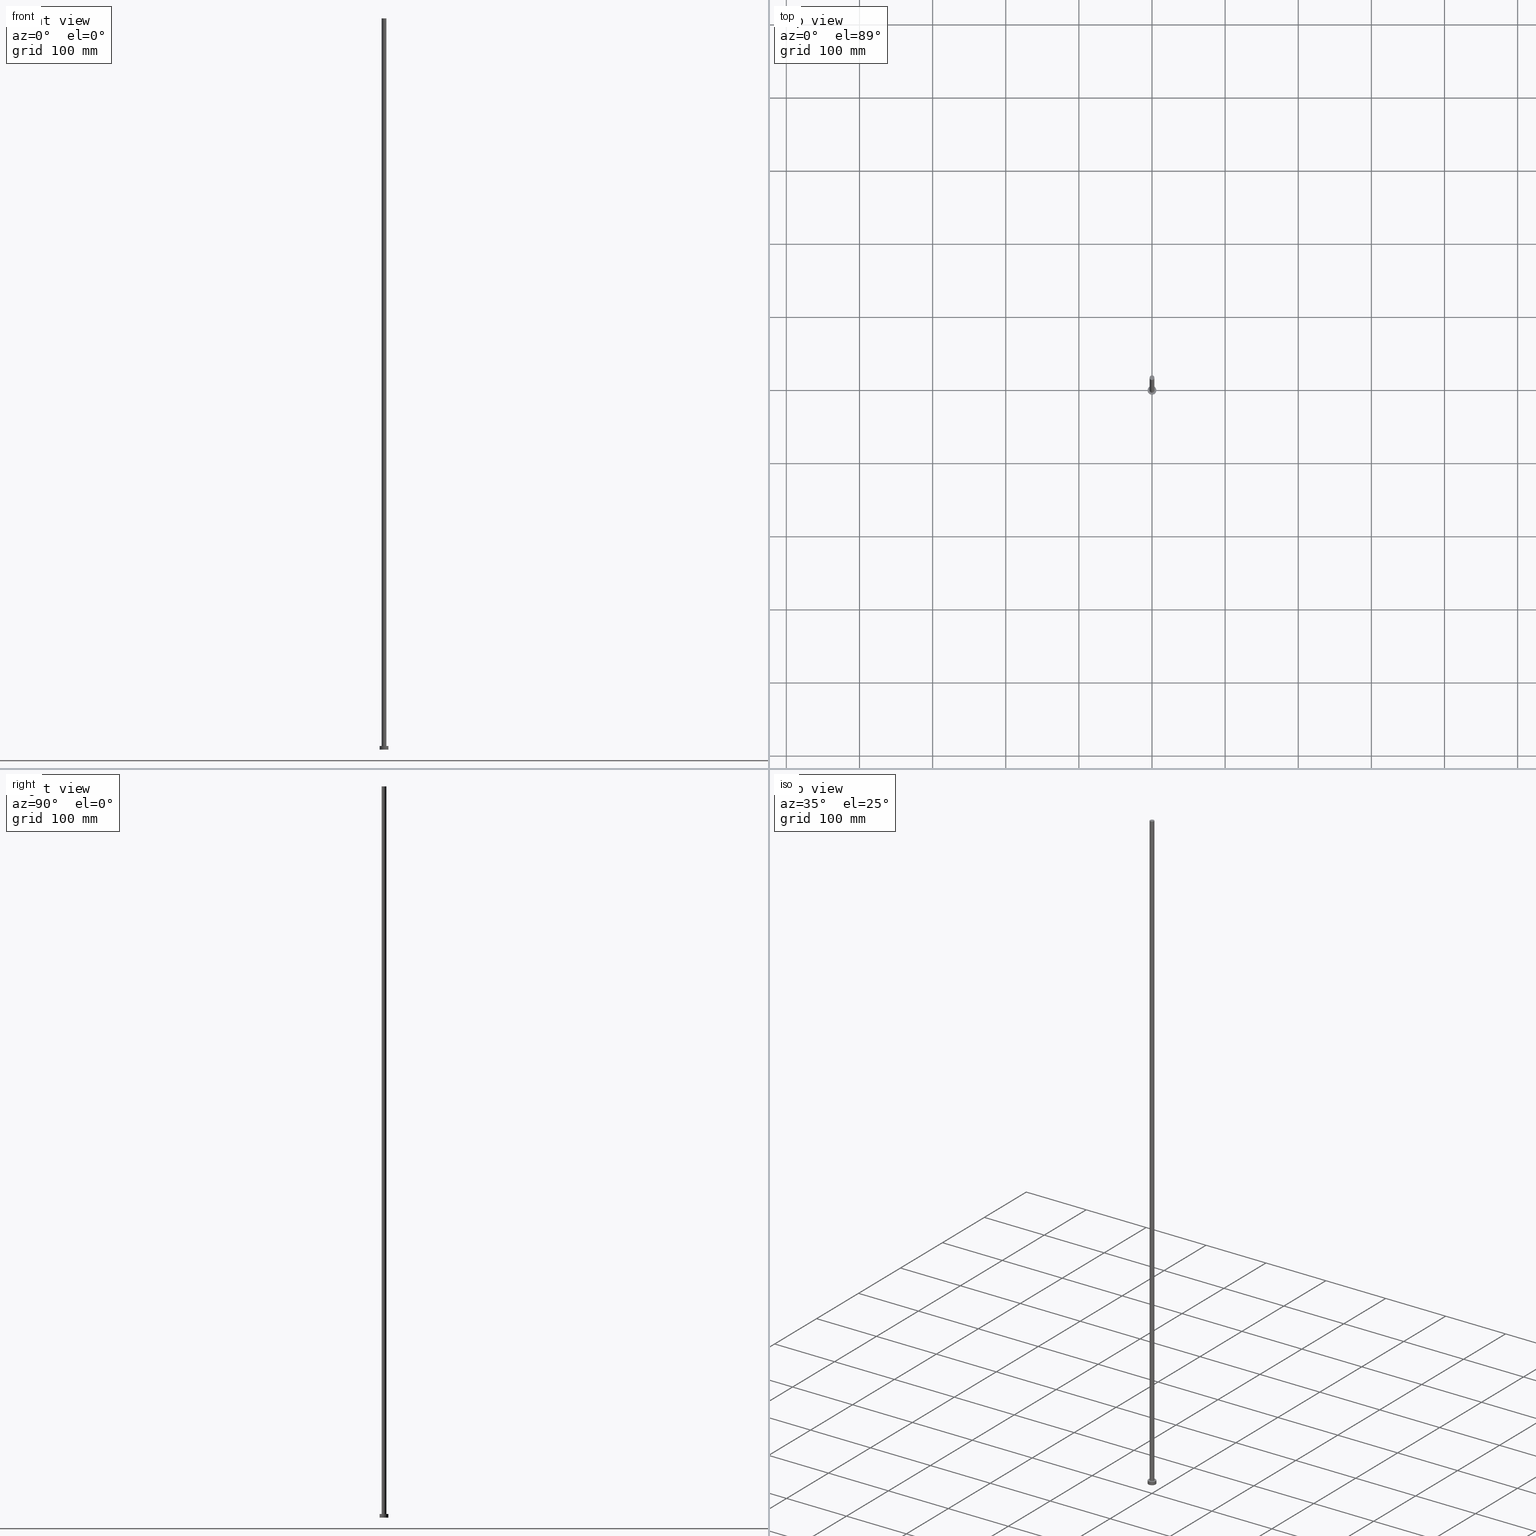
[diagram: canonical four-view strip — front | top / right | iso, engineering-drawing reading convention]
A machine part, canonical four-view strip (front | top / right | iso — engineering-drawing reading convention). The complete STEP part file that produces these views, byte-faithful:
ISO-10303-21;
HEADER;
FILE_DESCRIPTION (( 'STEP AP203' ),
    '1' );
FILE_NAME ('9ff3.STEP',
    '2023-02-13T15:15:50',
    ( '' ),
    ( '' ),
    'SwSTEP 2.0',
    'SolidWorks 2019',
    '' );
FILE_SCHEMA (( 'CONFIG_CONTROL_DESIGN' ));
ENDSEC;

DATA;
#1 =( LENGTH_UNIT ( ) NAMED_UNIT ( * ) SI_UNIT ( .MILLI., .METRE. ) );
#2 = VERTEX_POINT ( 'NONE', #10 ) ;
#3 = COORDINATED_UNIVERSAL_TIME_OFFSET ( 1, 0, .AHEAD. ) ;
#4 = VERTEX_POINT ( 'NONE', #89 ) ;
#5 = EDGE_CURVE ( 'NONE', #28, #4, #201, .T. ) ;
#6 = CIRCLE ( 'NONE', #15, 6.000000000000000888 ) ;
#7 = EDGE_LOOP ( 'NONE', ( #250, #63 ) ) ;
#8 = CARTESIAN_POINT ( 'NONE',  ( -6.000000000000000888, 0.000000000000000000, 5.000000000000000000 ) ) ;
#9 = DATE_AND_TIME ( #85, #100 ) ;
#10 = CARTESIAN_POINT ( 'NONE',  ( -6.000000000000000888, 0.000000000000000000, 5.000000000000000000 ) ) ;
#11 = PRODUCT_DEFINITION ( 'NEZN�M�', '', #158, #50 ) ;
#12 = AXIS2_PLACEMENT_3D ( 'NONE', #80, #165, #186 ) ;
#13 = DIRECTION ( 'NONE',  ( 0.000000000000000000, 0.000000000000000000, 1.000000000000000000 ) ) ;
#14 = CYLINDRICAL_SURFACE ( 'NONE', #41, 3.250000000000000444 ) ;
#15 = AXIS2_PLACEMENT_3D ( 'NONE', #122, #120, #21 ) ;
#16 = CARTESIAN_POINT ( 'NONE',  ( -6.000000000000000888, 0.000000000000000000, 0.000000000000000000 ) ) ;
#17 = DIRECTION ( 'NONE',  ( -0.000000000000000000, -0.000000000000000000, -1.000000000000000000 ) ) ;
#18 = DIRECTION ( 'NONE',  ( -0.000000000000000000, -0.000000000000000000, -1.000000000000000000 ) ) ;
#19 = VERTEX_POINT ( 'NONE', #171 ) ;
#20 = PERSON_AND_ORGANIZATION ( #163, #48 ) ;
#21 = DIRECTION ( 'NONE',  ( 1.000000000000000000, 0.000000000000000000, 0.000000000000000000 ) ) ;
#22 = ORIENTED_EDGE ( 'NONE', *, *, #200, .F. ) ;
#23 = FACE_BOUND ( 'NONE', #247, .T. ) ;
#24 = MANIFOLD_SOLID_BREP ( 'P�idat vysunut�m3', #60 ) ;
#25 = CC_DESIGN_DATE_AND_TIME_ASSIGNMENT ( #82, #64, ( #11 ) ) ;
#26 = DIRECTION ( 'NONE',  ( 1.000000000000000000, 0.000000000000000000, 0.000000000000000000 ) ) ;
#27 = PERSON_AND_ORGANIZATION ( #163, #48 ) ;
#28 = VERTEX_POINT ( 'NONE', #71 ) ;
#29 = CARTESIAN_POINT ( 'NONE',  ( 0.000000000000000000, 0.000000000000000000, 5.000000000000000000 ) ) ;
#30 = APPROVAL ( #237, 'NEUR�EN�' ) ;
#31 = VECTOR ( 'NONE', #88, 1000.000000000000000 ) ;
#32 = CALENDAR_DATE ( 2023, 13, 2 ) ;
#33 = APPLICATION_PROTOCOL_DEFINITION ( 'international standard', 'config_control_design', 1994, #154 ) ;
#34 = APPROVAL_ROLE ( '' ) ;
#35 = EDGE_CURVE ( 'NONE', #2, #84, #152, .T. ) ;
#36 = DIRECTION ( 'NONE',  ( 0.000000000000000000, 0.000000000000000000, 1.000000000000000000 ) ) ;
#37 = CYLINDRICAL_SURFACE ( 'NONE', #174, 6.000000000000000888 ) ;
#38 = DIRECTION ( 'NONE',  ( -1.000000000000000000, 0.000000000000000000, 0.000000000000000000 ) ) ;
#39 = LOCAL_TIME ( 16, 15, 50.00000000000000000, #116 ) ;
#40 = CC_DESIGN_PERSON_AND_ORGANIZATION_ASSIGNMENT ( #226, #111, ( #158 ) ) ;
#41 = AXIS2_PLACEMENT_3D ( 'NONE', #135, #115, #95 ) ;
#42 = AXIS2_PLACEMENT_3D ( 'NONE', #29, #236, #114 ) ;
#43 = CARTESIAN_POINT ( 'NONE',  ( 6.000000000000000888, 7.347880794884120722E-16, 5.000000000000000000 ) ) ;
#44 = CC_DESIGN_APPROVAL ( #107, ( #75 ) ) ;
#45 = CC_DESIGN_PERSON_AND_ORGANIZATION_ASSIGNMENT ( #149, #189, ( #158 ) ) ;
#46 = DIRECTION ( 'NONE',  ( 1.000000000000000000, 0.000000000000000000, 0.000000000000000000 ) ) ;
#47 = ORIENTED_EDGE ( 'NONE', *, *, #234, .T. ) ;
#48 = ORGANIZATION ( 'NEUR�EN�', 'NEUR�EN�', '' ) ;
#49 = ORIENTED_EDGE ( 'NONE', *, *, #206, .T. ) ;
#50 = DESIGN_CONTEXT ( 'detailed design', #154, 'design' ) ;
#51 = CARTESIAN_POINT ( 'NONE',  ( -3.250000000000000444, 0.000000000000000000, 1000.000000000000000 ) ) ;
#52 = AXIS2_PLACEMENT_3D ( 'NONE', #102, #223, #227 ) ;
#53 =( NAMED_UNIT ( * ) PLANE_ANGLE_UNIT ( ) SI_UNIT ( $, .RADIAN. ) );
#54 = FACE_OUTER_BOUND ( 'NONE', #103, .T. ) ;
#55 =( NAMED_UNIT ( * ) SI_UNIT ( $, .STERADIAN. ) SOLID_ANGLE_UNIT ( ) );
#56 = EDGE_CURVE ( 'NONE', #19, #2, #94, .T. ) ;
#57 = DATE_AND_TIME ( #238, #90 ) ;
#58 = DIRECTION ( 'NONE',  ( 1.000000000000000000, 0.000000000000000000, -0.000000000000000000 ) ) ;
#59 = ORIENTED_EDGE ( 'NONE', *, *, #61, .F. ) ;
#60 = CLOSED_SHELL ( 'NONE', ( #124, #192, #153, #169, #73, #211, #140 ) ) ;
#61 = EDGE_CURVE ( 'NONE', #4, #28, #181, .T. ) ;
#62 = CARTESIAN_POINT ( 'NONE',  ( 0.000000000000000000, 0.000000000000000000, 5.000000000000000000 ) ) ;
#63 = ORIENTED_EDGE ( 'NONE', *, *, #56, .T. ) ;
#64 = DATE_TIME_ROLE ( 'creation_date' ) ;
#65 = CARTESIAN_POINT ( 'NONE',  ( 3.250000000000000444, 3.980102097228897245E-16, 5.000000000000000000 ) ) ;
#66 = APPROVAL ( #185, 'NEUR�EN�' ) ;
#67 = EDGE_LOOP ( 'NONE', ( #148, #59, #121, #47 ) ) ;
#68 = EDGE_LOOP ( 'NONE', ( #123, #172, #110, #166 ) ) ;
#69 = VECTOR ( 'NONE', #93, 1000.000000000000000 ) ;
#70 = CIRCLE ( 'NONE', #164, 3.250000000000000444 ) ;
#71 = CARTESIAN_POINT ( 'NONE',  ( 3.250000000000000444, 3.980102097228897245E-16, 1000.000000000000000 ) ) ;
#72 = PERSON_AND_ORGANIZATION ( #163, #48 ) ;
#73 = ADVANCED_FACE ( 'NONE', ( #130 ), #187, .F. ) ;
#74 = DIRECTION ( 'NONE',  ( -0.000000000000000000, -0.000000000000000000, -1.000000000000000000 ) ) ;
#75 = SECURITY_CLASSIFICATION ( '', '', #92 ) ;
#76 = PERSON_AND_ORGANIZATION_ROLE ( 'design_owner' ) ;
#77 = APPLICATION_CONTEXT ( 'configuration controlled 3d designs of mechanical parts and assemblies' ) ;
#78 = LINE ( 'NONE', #51, #69 ) ;
#79 = FACE_OUTER_BOUND ( 'NONE', #7, .T. ) ;
#80 = CARTESIAN_POINT ( 'NONE',  ( 0.000000000000000000, 0.000000000000000000, 0.000000000000000000 ) ) ;
#81 = APPROVAL_DATE_TIME ( #203, #66 ) ;
#82 = DATE_AND_TIME ( #205, #233 ) ;
#83 = DIRECTION ( 'NONE',  ( -1.000000000000000000, 0.000000000000000000, 0.000000000000000000 ) ) ;
#84 = VERTEX_POINT ( 'NONE', #16 ) ;
#85 = CALENDAR_DATE ( 2023, 13, 2 ) ;
#86 = APPROVAL_STATUS ( 'not_yet_approved' ) ;
#87 = AXIS2_PLACEMENT_3D ( 'NONE', #127, #209, #26 ) ;
#88 = DIRECTION ( 'NONE',  ( -0.000000000000000000, -0.000000000000000000, -1.000000000000000000 ) ) ;
#89 = CARTESIAN_POINT ( 'NONE',  ( -3.250000000000000444, 0.000000000000000000, 1000.000000000000000 ) ) ;
#90 = LOCAL_TIME ( 16, 15, 50.00000000000000000, #194 ) ;
#91 = EDGE_CURVE ( 'NONE', #4, #108, #78, .T. ) ;
#92 = SECURITY_CLASSIFICATION_LEVEL ( 'unclassified' ) ;
#93 = DIRECTION ( 'NONE',  ( -0.000000000000000000, -0.000000000000000000, -1.000000000000000000 ) ) ;
#94 = CIRCLE ( 'NONE', #241, 6.000000000000000888 ) ;
#95 = DIRECTION ( 'NONE',  ( -1.000000000000000000, 0.000000000000000000, 0.000000000000000000 ) ) ;
#96 = MECHANICAL_CONTEXT ( 'NONE', #77, 'mechanical' ) ;
#97 = DATE_AND_TIME ( #32, #39 ) ;
#98 = PERSON_AND_ORGANIZATION ( #163, #48 ) ;
#99 = LINE ( 'NONE', #43, #139 ) ;
#100 = LOCAL_TIME ( 16, 15, 50.00000000000000000, #128 ) ;
#101 = PERSON_AND_ORGANIZATION ( #163, #48 ) ;
#102 = CARTESIAN_POINT ( 'NONE',  ( 0.000000000000000000, 0.000000000000000000, 5.000000000000000000 ) ) ;
#103 = EDGE_LOOP ( 'NONE', ( #132, #112, #105, #202 ) ) ;
#104 = DIRECTION ( 'NONE',  ( -0.000000000000000000, -0.000000000000000000, -1.000000000000000000 ) ) ;
#105 = ORIENTED_EDGE ( 'NONE', *, *, #134, .T. ) ;
#106 = EDGE_CURVE ( 'NONE', #28, #150, #133, .T. ) ;
#107 = APPROVAL ( #86, 'NEUR�EN�' ) ;
#108 = VERTEX_POINT ( 'NONE', #157 ) ;
#109 = CC_DESIGN_PERSON_AND_ORGANIZATION_ASSIGNMENT ( #101, #243, ( #11 ) ) ;
#110 = ORIENTED_EDGE ( 'NONE', *, *, #35, .T. ) ;
#111 = PERSON_AND_ORGANIZATION_ROLE ( 'creator' ) ;
#112 = ORIENTED_EDGE ( 'NONE', *, *, #106, .T. ) ;
#113 = CC_DESIGN_PERSON_AND_ORGANIZATION_ASSIGNMENT ( #175, #76, ( #162 ) ) ;
#114 = DIRECTION ( 'NONE',  ( 1.000000000000000000, 0.000000000000000000, 0.000000000000000000 ) ) ;
#115 = DIRECTION ( 'NONE',  ( -0.000000000000000000, -0.000000000000000000, -1.000000000000000000 ) ) ;
#116 = COORDINATED_UNIVERSAL_TIME_OFFSET ( 1, 0, .AHEAD. ) ;
#117 = APPROVAL_ROLE ( '' ) ;
#118 = EDGE_CURVE ( 'NONE', #2, #19, #214, .T. ) ;
#119 = CARTESIAN_POINT ( 'NONE',  ( 6.000000000000000888, 7.347880794884120722E-16, 0.000000000000000000 ) ) ;
#120 = DIRECTION ( 'NONE',  ( 0.000000000000000000, 0.000000000000000000, 1.000000000000000000 ) ) ;
#121 = ORIENTED_EDGE ( 'NONE', *, *, #91, .T. ) ;
#122 = CARTESIAN_POINT ( 'NONE',  ( 0.000000000000000000, 0.000000000000000000, 0.000000000000000000 ) ) ;
#123 = ORIENTED_EDGE ( 'NONE', *, *, #206, .F. ) ;
#124 = ADVANCED_FACE ( 'NONE', ( #54 ), #14, .T. ) ;
#125 = FACE_OUTER_BOUND ( 'NONE', #67, .T. ) ;
#126 = CC_DESIGN_APPROVAL ( #66, ( #158 ) ) ;
#127 = CARTESIAN_POINT ( 'NONE',  ( 0.000000000000000000, 0.000000000000000000, 1000.000000000000000 ) ) ;
#128 = COORDINATED_UNIVERSAL_TIME_OFFSET ( 1, 0, .AHEAD. ) ;
#129 = CC_DESIGN_PERSON_AND_ORGANIZATION_ASSIGNMENT ( #72, #156, ( #75 ) ) ;
#130 = FACE_OUTER_BOUND ( 'NONE', #182, .T. ) ;
#131 = ORIENTED_EDGE ( 'NONE', *, *, #5, .T. ) ;
#132 = ORIENTED_EDGE ( 'NONE', *, *, #5, .F. ) ;
#133 = LINE ( 'NONE', #251, #160 ) ;
#134 = EDGE_CURVE ( 'NONE', #150, #108, #159, .T. ) ;
#135 = CARTESIAN_POINT ( 'NONE',  ( 0.000000000000000000, 0.000000000000000000, 1000.000000000000000 ) ) ;
#136 = SHAPE_DEFINITION_REPRESENTATION ( #142, #138 ) ;
#137 = DIRECTION ( 'NONE',  ( 1.000000000000000000, 0.000000000000000000, 0.000000000000000000 ) ) ;
#138 = ADVANCED_BREP_SHAPE_REPRESENTATION ( '9ff3', ( #24, #198 ), #207 ) ;
#139 = VECTOR ( 'NONE', #104, 1000.000000000000000 ) ;
#140 = ADVANCED_FACE ( 'NONE', ( #220 ), #224, .T. ) ;
#141 = CYLINDRICAL_SURFACE ( 'NONE', #188, 3.250000000000000444 ) ;
#142 = PRODUCT_DEFINITION_SHAPE ( 'NONE', 'NONE',  #11 ) ;
#143 = ORIENTED_EDGE ( 'NONE', *, *, #215, .F. ) ;
#144 = AXIS2_PLACEMENT_3D ( 'NONE', #183, #17, #83 ) ;
#145 = AXIS2_PLACEMENT_3D ( 'NONE', #217, #13, #216 ) ;
#146 = EDGE_LOOP ( 'NONE', ( #208, #131 ) ) ;
#147 = CARTESIAN_POINT ( 'NONE',  ( 0.000000000000000000, 0.000000000000000000, 5.000000000000000000 ) ) ;
#148 = ORIENTED_EDGE ( 'NONE', *, *, #106, .F. ) ;
#149 = PERSON_AND_ORGANIZATION ( #163, #48 ) ;
#150 = VERTEX_POINT ( 'NONE', #65 ) ;
#151 = APPROVAL_PERSON_ORGANIZATION ( #27, #107, #34 ) ;
#152 = LINE ( 'NONE', #8, #31 ) ;
#153 = ADVANCED_FACE ( 'NONE', ( #196 ), #37, .T. ) ;
#154 = APPLICATION_CONTEXT ( 'configuration controlled 3d designs of mechanical parts and assemblies' ) ;
#155 = DIRECTION ( 'NONE',  ( 0.000000000000000000, 0.000000000000000000, 1.000000000000000000 ) ) ;
#156 = PERSON_AND_ORGANIZATION_ROLE ( 'classification_officer' ) ;
#157 = CARTESIAN_POINT ( 'NONE',  ( -3.250000000000000444, 0.000000000000000000, 5.000000000000000000 ) ) ;
#158 = PRODUCT_DEFINITION_FORMATION_WITH_SPECIFIED_SOURCE ( 'LIBOVOLN�', '', #162, .NOT_KNOWN. ) ;
#159 = CIRCLE ( 'NONE', #52, 3.250000000000000444 ) ;
#160 = VECTOR ( 'NONE', #74, 1000.000000000000000 ) ;
#161 = APPROVAL_DATE_TIME ( #97, #107 ) ;
#162 = PRODUCT ( '9ff3', '9ff3', '', ( #96 ) ) ;
#163 = PERSON ( 'NEUR�EN�', 'NEUR�EN�', 'NEUR�EN�', ('NEUR�EN�'), ('NEUR�EN�'), ('NEUR�EN�') ) ;
#164 = AXIS2_PLACEMENT_3D ( 'NONE', #235, #155, #168 ) ;
#165 = DIRECTION ( 'NONE',  ( 0.000000000000000000, 0.000000000000000000, 1.000000000000000000 ) ) ;
#166 = ORIENTED_EDGE ( 'NONE', *, *, #200, .T. ) ;
#167 = VERTEX_POINT ( 'NONE', #119 ) ;
#168 = DIRECTION ( 'NONE',  ( 1.000000000000000000, 0.000000000000000000, 0.000000000000000000 ) ) ;
#169 = ADVANCED_FACE ( 'NONE', ( #23, #79 ), #244, .T. ) ;
#170 = AXIS2_PLACEMENT_3D ( 'NONE', #62, #254, #58 ) ;
#171 = CARTESIAN_POINT ( 'NONE',  ( 6.000000000000000888, 7.347880794884120722E-16, 5.000000000000000000 ) ) ;
#172 = ORIENTED_EDGE ( 'NONE', *, *, #118, .F. ) ;
#173 = CARTESIAN_POINT ( 'NONE',  ( 0.000000000000000000, 0.000000000000000000, 1000.000000000000000 ) ) ;
#174 = AXIS2_PLACEMENT_3D ( 'NONE', #180, #18, #38 ) ;
#175 = PERSON_AND_ORGANIZATION ( #163, #48 ) ;
#176 = LOCAL_TIME ( 16, 15, 50.00000000000000000, #197 ) ;
#177 = DIRECTION ( 'NONE',  ( 1.000000000000000000, 0.000000000000000000, -0.000000000000000000 ) ) ;
#178 = DIRECTION ( 'NONE',  ( 0.000000000000000000, 0.000000000000000000, 1.000000000000000000 ) ) ;
#179 = CALENDAR_DATE ( 2023, 13, 2 ) ;
#180 = CARTESIAN_POINT ( 'NONE',  ( 0.000000000000000000, 0.000000000000000000, 5.000000000000000000 ) ) ;
#181 = CIRCLE ( 'NONE', #87, 3.250000000000000444 ) ;
#182 = EDGE_LOOP ( 'NONE', ( #22, #143 ) ) ;
#183 = CARTESIAN_POINT ( 'NONE',  ( 0.000000000000000000, 0.000000000000000000, 5.000000000000000000 ) ) ;
#184 = CIRCLE ( 'NONE', #12, 6.000000000000000888 ) ;
#185 = APPROVAL_STATUS ( 'not_yet_approved' ) ;
#186 = DIRECTION ( 'NONE',  ( 1.000000000000000000, 0.000000000000000000, 0.000000000000000000 ) ) ;
#187 = PLANE ( 'NONE',  #145 ) ;
#188 = AXIS2_PLACEMENT_3D ( 'NONE', #204, #222, #253 ) ;
#189 = PERSON_AND_ORGANIZATION_ROLE ( 'design_supplier' ) ;
#190 = AXIS2_PLACEMENT_3D ( 'NONE', #245, #36, #177 ) ;
#191 = ORIENTED_EDGE ( 'NONE', *, *, #234, .F. ) ;
#192 = ADVANCED_FACE ( 'NONE', ( #195 ), #199, .T. ) ;
#193 = APPROVAL_PERSON_ORGANIZATION ( #20, #66, #248 ) ;
#194 = COORDINATED_UNIVERSAL_TIME_OFFSET ( 1, 0, .AHEAD. ) ;
#195 = FACE_OUTER_BOUND ( 'NONE', #231, .T. ) ;
#196 = FACE_OUTER_BOUND ( 'NONE', #68, .T. ) ;
#197 = COORDINATED_UNIVERSAL_TIME_OFFSET ( 1, 0, .AHEAD. ) ;
#198 = AXIS2_PLACEMENT_3D ( 'NONE', #219, #178, #137 ) ;
#199 = CYLINDRICAL_SURFACE ( 'NONE', #144, 6.000000000000000888 ) ;
#200 = EDGE_CURVE ( 'NONE', #84, #167, #6, .T. ) ;
#201 = CIRCLE ( 'NONE', #210, 3.250000000000000444 ) ;
#202 = ORIENTED_EDGE ( 'NONE', *, *, #91, .F. ) ;
#203 = DATE_AND_TIME ( #179, #176 ) ;
#204 = CARTESIAN_POINT ( 'NONE',  ( 0.000000000000000000, 0.000000000000000000, 1000.000000000000000 ) ) ;
#205 = CALENDAR_DATE ( 2023, 13, 2 ) ;
#206 = EDGE_CURVE ( 'NONE', #19, #167, #99, .T. ) ;
#207 =( GEOMETRIC_REPRESENTATION_CONTEXT ( 3 ) GLOBAL_UNCERTAINTY_ASSIGNED_CONTEXT ( ( #249 ) ) GLOBAL_UNIT_ASSIGNED_CONTEXT ( ( #1, #53, #55 ) ) REPRESENTATION_CONTEXT ( 'NONE', 'WORKASPACE' ) );
#208 = ORIENTED_EDGE ( 'NONE', *, *, #61, .T. ) ;
#209 = DIRECTION ( 'NONE',  ( 0.000000000000000000, 0.000000000000000000, 1.000000000000000000 ) ) ;
#210 = AXIS2_PLACEMENT_3D ( 'NONE', #173, #230, #213 ) ;
#211 = ADVANCED_FACE ( 'NONE', ( #125 ), #141, .T. ) ;
#212 = DATE_TIME_ROLE ( 'classification_date' ) ;
#213 = DIRECTION ( 'NONE',  ( 1.000000000000000000, 0.000000000000000000, 0.000000000000000000 ) ) ;
#214 = CIRCLE ( 'NONE', #42, 6.000000000000000888 ) ;
#215 = EDGE_CURVE ( 'NONE', #167, #84, #184, .T. ) ;
#216 = DIRECTION ( 'NONE',  ( 1.000000000000000000, 0.000000000000000000, -0.000000000000000000 ) ) ;
#217 = CARTESIAN_POINT ( 'NONE',  ( 0.000000000000000000, 0.000000000000000000, 0.000000000000000000 ) ) ;
#218 = APPLICATION_PROTOCOL_DEFINITION ( 'international standard', 'config_control_design', 1994, #77 ) ;
#219 = CARTESIAN_POINT ( 'NONE',  ( 0.000000000000000000, 0.000000000000000000, 0.000000000000000000 ) ) ;
#220 = FACE_OUTER_BOUND ( 'NONE', #146, .T. ) ;
#221 = APPROVAL_DATE_TIME ( #57, #30 ) ;
#222 = DIRECTION ( 'NONE',  ( -0.000000000000000000, -0.000000000000000000, -1.000000000000000000 ) ) ;
#223 = DIRECTION ( 'NONE',  ( 0.000000000000000000, 0.000000000000000000, 1.000000000000000000 ) ) ;
#224 = PLANE ( 'NONE',  #190 ) ;
#225 = ORIENTED_EDGE ( 'NONE', *, *, #56, .F. ) ;
#226 = PERSON_AND_ORGANIZATION ( #163, #48 ) ;
#227 = DIRECTION ( 'NONE',  ( 1.000000000000000000, 0.000000000000000000, 0.000000000000000000 ) ) ;
#228 = CC_DESIGN_SECURITY_CLASSIFICATION ( #75, ( #158 ) ) ;
#229 = DIRECTION ( 'NONE',  ( 0.000000000000000000, 0.000000000000000000, 1.000000000000000000 ) ) ;
#230 = DIRECTION ( 'NONE',  ( 0.000000000000000000, 0.000000000000000000, 1.000000000000000000 ) ) ;
#231 = EDGE_LOOP ( 'NONE', ( #225, #49, #242, #246 ) ) ;
#232 = ORIENTED_EDGE ( 'NONE', *, *, #134, .F. ) ;
#233 = LOCAL_TIME ( 16, 15, 50.00000000000000000, #3 ) ;
#234 = EDGE_CURVE ( 'NONE', #108, #150, #70, .T. ) ;
#235 = CARTESIAN_POINT ( 'NONE',  ( 0.000000000000000000, 0.000000000000000000, 5.000000000000000000 ) ) ;
#236 = DIRECTION ( 'NONE',  ( 0.000000000000000000, 0.000000000000000000, 1.000000000000000000 ) ) ;
#237 = APPROVAL_STATUS ( 'not_yet_approved' ) ;
#238 = CALENDAR_DATE ( 2023, 13, 2 ) ;
#239 = CC_DESIGN_APPROVAL ( #30, ( #11 ) ) ;
#240 = PRODUCT_RELATED_PRODUCT_CATEGORY ( 'detail', '', ( #162 ) ) ;
#241 = AXIS2_PLACEMENT_3D ( 'NONE', #147, #229, #46 ) ;
#242 = ORIENTED_EDGE ( 'NONE', *, *, #215, .T. ) ;
#243 = PERSON_AND_ORGANIZATION_ROLE ( 'creator' ) ;
#244 = PLANE ( 'NONE',  #170 ) ;
#245 = CARTESIAN_POINT ( 'NONE',  ( 0.000000000000000000, 0.000000000000000000, 1000.000000000000000 ) ) ;
#246 = ORIENTED_EDGE ( 'NONE', *, *, #35, .F. ) ;
#247 = EDGE_LOOP ( 'NONE', ( #191, #232 ) ) ;
#248 = APPROVAL_ROLE ( '' ) ;
#249 = UNCERTAINTY_MEASURE_WITH_UNIT (LENGTH_MEASURE( 1.000000000000000082E-05 ), #1, 'distance_accuracy_value', 'NONE');
#250 = ORIENTED_EDGE ( 'NONE', *, *, #118, .T. ) ;
#251 = CARTESIAN_POINT ( 'NONE',  ( 3.250000000000000444, 3.980102097228897245E-16, 1000.000000000000000 ) ) ;
#252 = CC_DESIGN_DATE_AND_TIME_ASSIGNMENT ( #9, #212, ( #75 ) ) ;
#253 = DIRECTION ( 'NONE',  ( -1.000000000000000000, 0.000000000000000000, 0.000000000000000000 ) ) ;
#254 = DIRECTION ( 'NONE',  ( 0.000000000000000000, 0.000000000000000000, 1.000000000000000000 ) ) ;
#255 = APPROVAL_PERSON_ORGANIZATION ( #98, #30, #117 ) ;
ENDSEC;
END-ISO-10303-21;
